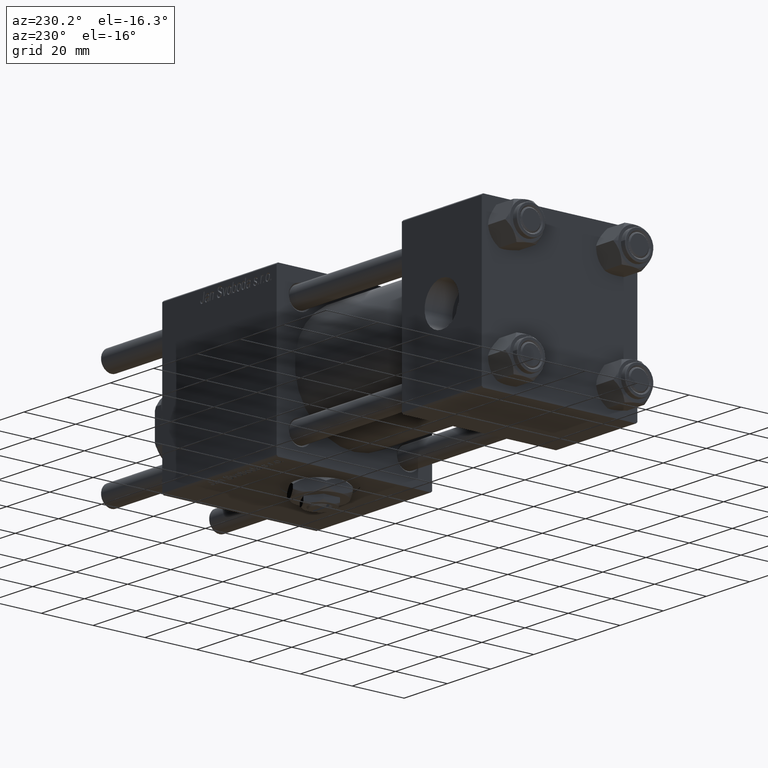
[diagram: clean part render]
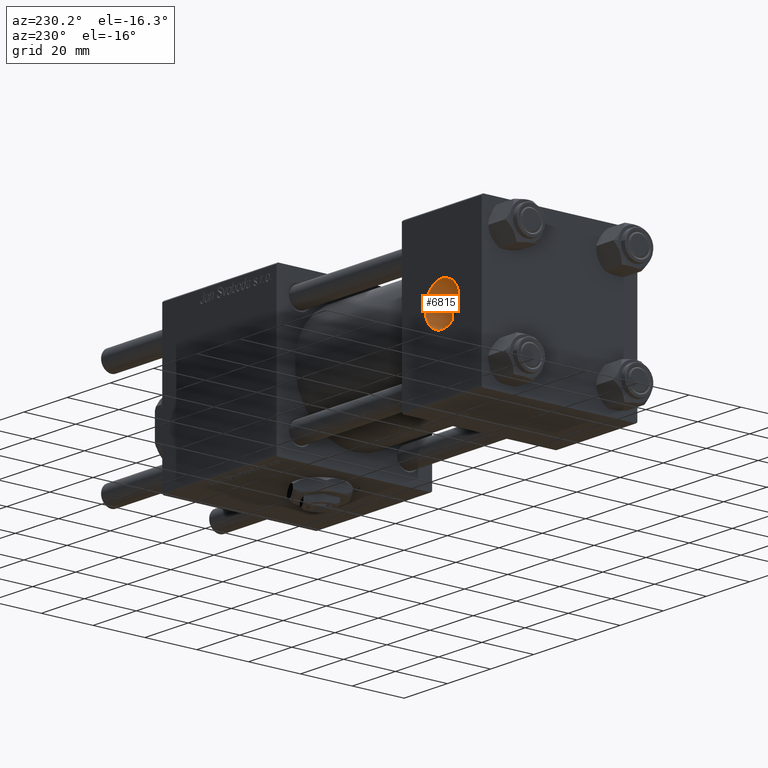
[diagram: same view with one face highlighted and labeled with its STEP entity id]
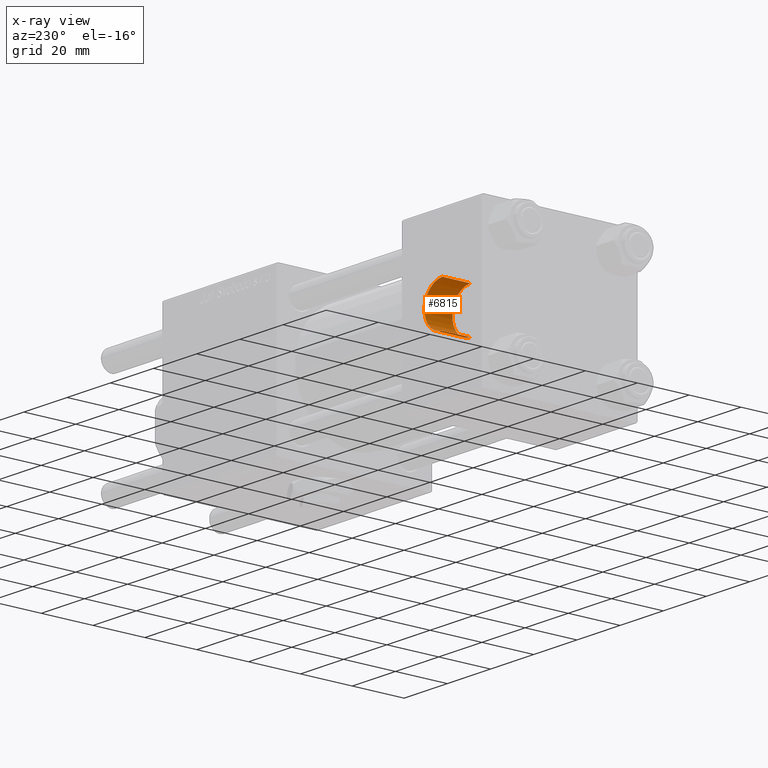
[diagram: x-ray of the same camera — body ghosted, the highlighted face saturated]
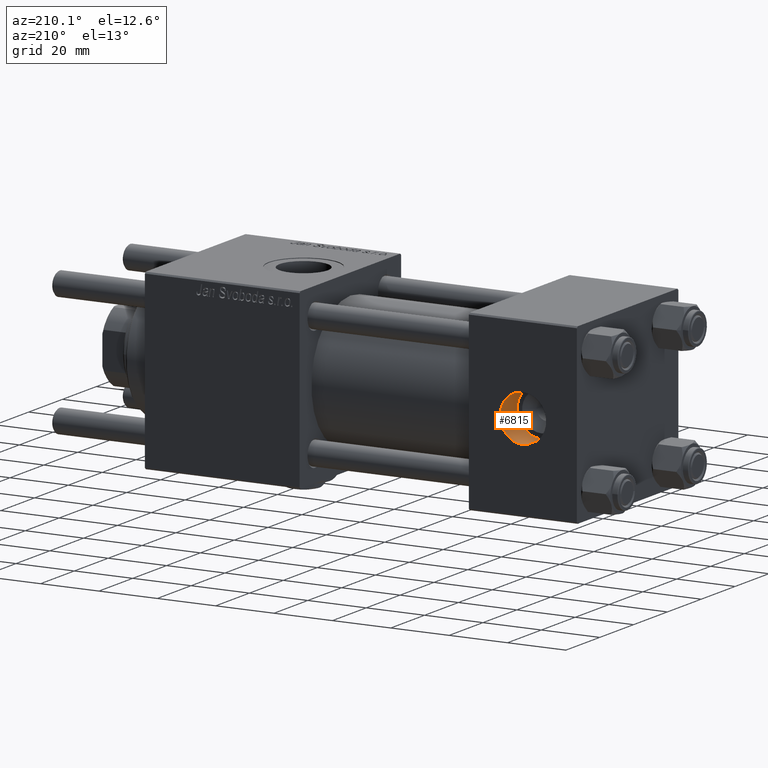
[diagram: same view with one face highlighted and labeled with its STEP entity id]
A machine part, auxiliary view. The second image highlights one B-rep face of the part: STEP entity #6815.
The next image is the same camera in x-ray: the body ghosted, the highlighted face saturated — about 0% of this face is hidden behind the body in this view.
A second angle (auxiliary view) of the same face is appended — the face is thin or edge-on in the first view.
In plain terms, the highlighted cylindrical surface (edge-blend (fillet) strip) has radius 8.33 mm, axis along (0, 1, 0).
Its self-contained STEP definition (entity closure, byte-faithful):
#490 = EDGE_CURVE ( 'NONE', #639, #45389, #53985, .T. ) ;
#639 = VERTEX_POINT ( 'NONE', #1521 ) ;
#721 = LINE ( 'NONE', #41196, #24152 ) ;
#1521 = CARTESIAN_POINT ( 'NONE',  ( 18.50000000000000000, 29.79999999999999361, 8.330000000000001847 ) ) ;
#4122 = FACE_OUTER_BOUND ( 'NONE', #12778, .T. ) ;
#4609 = LINE ( 'NONE', #36451, #56482 ) ;
#4769 = CARTESIAN_POINT ( 'NONE',  ( 18.50000000000000000, 18.99999999999999289, -8.330000000000001847 ) ) ;
#6815 = ADVANCED_FACE ( 'NONE', ( #4122 ), #49684, .F. ) ;
#8455 = CIRCLE ( 'NONE', #56032, 8.330000000000001847 ) ;
#12778 = EDGE_LOOP ( 'NONE', ( #49919, #49199, #43964, #40187 ) ) ;
#13549 = DIRECTION ( 'NONE',  ( -0.000000000000000000, 1.000000000000000000, -0.000000000000000000 ) ) ;
#14159 = CARTESIAN_POINT ( 'NONE',  ( 18.50000000000000000, 29.79999999999999361, -8.330000000000001847 ) ) ;
#15171 = CARTESIAN_POINT ( 'NONE',  ( 18.50000000000000000, 18.99999999999999289, 0.000000000000000000 ) ) ;
#15850 = CARTESIAN_POINT ( 'NONE',  ( 18.50000000000000000, 29.79999999999999361, 0.000000000000000000 ) ) ;
#16988 = CARTESIAN_POINT ( 'NONE',  ( 18.50000000000000000, 18.99999999999999289, 8.330000000000001847 ) ) ;
#20126 = VERTEX_POINT ( 'NONE', #16988 ) ;
#20165 = VERTEX_POINT ( 'NONE', #4769 ) ;
#20320 = EDGE_CURVE ( 'NONE', #20126, #20165, #8455, .T. ) ;
#20805 = DIRECTION ( 'NONE',  ( 0.000000000000000000, 1.000000000000000000, 0.000000000000000000 ) ) ;
#22872 = DIRECTION ( 'NONE',  ( 0.000000000000000000, 0.000000000000000000, 1.000000000000000000 ) ) ;
#23157 = DIRECTION ( 'NONE',  ( -0.000000000000000000, 1.000000000000000000, -0.000000000000000000 ) ) ;
#23542 = AXIS2_PLACEMENT_3D ( 'NONE', #15850, #34579, #52773 ) ;
#24152 = VECTOR ( 'NONE', #46560, 1000.000000000000000 ) ;
#28573 = DIRECTION ( 'NONE',  ( 0.000000000000000000, 0.000000000000000000, 1.000000000000000000 ) ) ;
#34579 = DIRECTION ( 'NONE',  ( 0.000000000000000000, 1.000000000000000000, 0.000000000000000000 ) ) ;
#36451 = CARTESIAN_POINT ( 'NONE',  ( 18.50000000000000000, 18.99999999999999289, 8.330000000000001847 ) ) ;
#39348 = EDGE_CURVE ( 'NONE', #20126, #639, #4609, .T. ) ;
#40187 = ORIENTED_EDGE ( 'NONE', *, *, #490, .T. ) ;
#41160 = EDGE_CURVE ( 'NONE', #20165, #45389, #721, .T. ) ;
#41196 = CARTESIAN_POINT ( 'NONE',  ( 18.50000000000000000, 18.99999999999999289, -8.330000000000001847 ) ) ;
#43964 = ORIENTED_EDGE ( 'NONE', *, *, #39348, .T. ) ;
#45389 = VERTEX_POINT ( 'NONE', #14159 ) ;
#46560 = DIRECTION ( 'NONE',  ( -0.000000000000000000, 1.000000000000000000, -0.000000000000000000 ) ) ;
#49199 = ORIENTED_EDGE ( 'NONE', *, *, #20320, .F. ) ;
#49684 = CYLINDRICAL_SURFACE ( 'NONE', #58821, 8.330000000000001847 ) ;
#49919 = ORIENTED_EDGE ( 'NONE', *, *, #41160, .F. ) ;
#50279 = CARTESIAN_POINT ( 'NONE',  ( 18.50000000000000000, 18.99999999999999289, 0.000000000000000000 ) ) ;
#52773 = DIRECTION ( 'NONE',  ( 0.000000000000000000, 0.000000000000000000, 1.000000000000000000 ) ) ;
#53985 = CIRCLE ( 'NONE', #23542, 8.330000000000001847 ) ;
#56032 = AXIS2_PLACEMENT_3D ( 'NONE', #15171, #20805, #28573 ) ;
#56482 = VECTOR ( 'NONE', #13549, 1000.000000000000000 ) ;
#58821 = AXIS2_PLACEMENT_3D ( 'NONE', #50279, #23157, #22872 ) ;